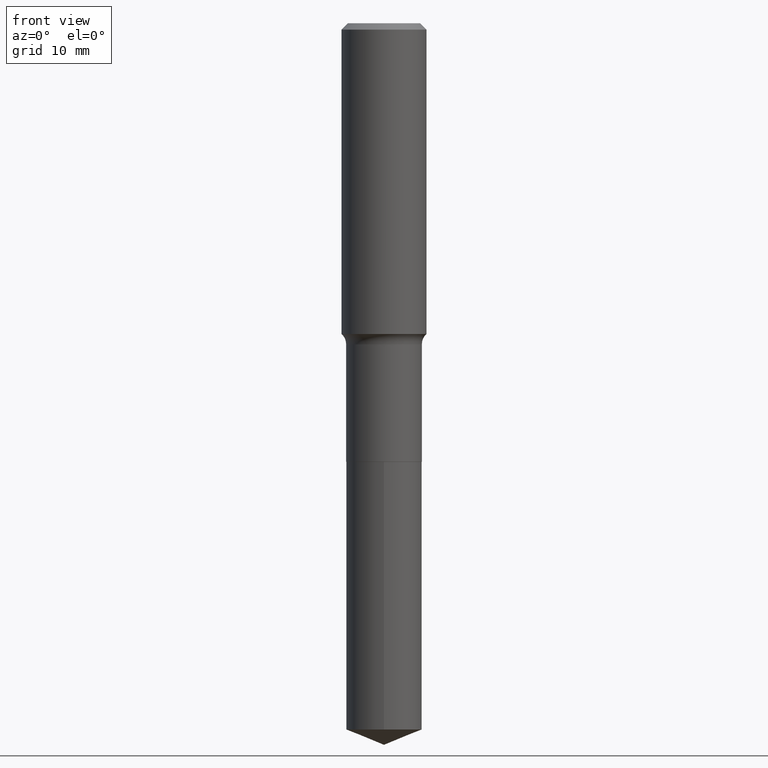
[diagram: clean part render]
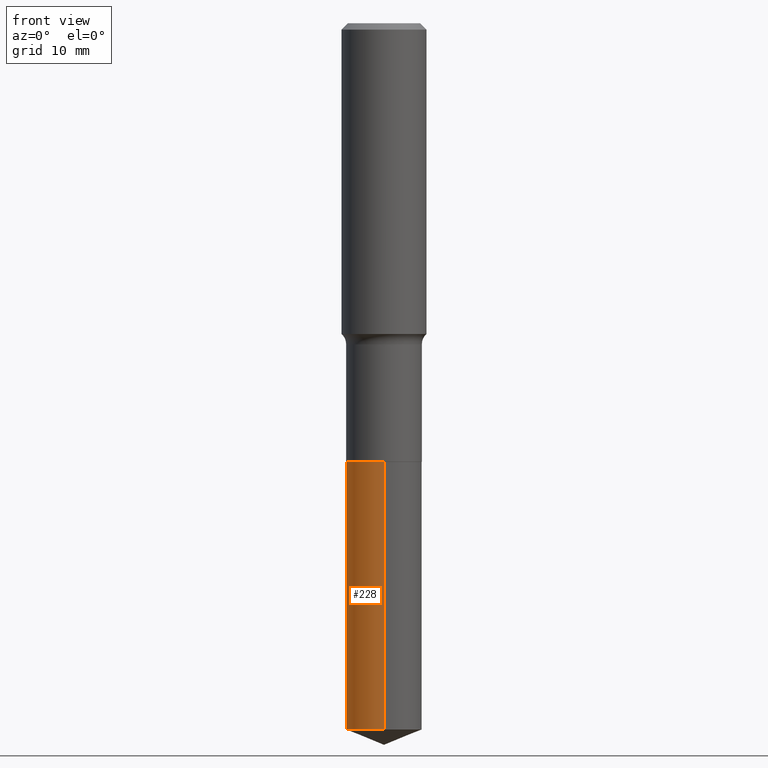
[diagram: same view with one face highlighted and labeled with its STEP entity id]
A machine part, front view. The second image highlights one B-rep face of the part: STEP entity #228.
In plain terms, the highlighted cylindrical surface (partial cylindrical patch) has radius 5.3505 mm, axis along (-0, 0, 1).
Its self-contained STEP definition (entity closure, byte-faithful):
#10 = EDGE_CURVE ( 'NONE', #451, #432, #41, .T. ) ;
#11 = ORIENTED_EDGE ( 'NONE', *, *, #426, .F. ) ;
#18 = DIRECTION ( 'NONE',  ( -2.445425754346182208E-29, 3.491542991526886614E-15, 1.000000000000000000 ) ) ;
#35 = EDGE_LOOP ( 'NONE', ( #11, #221, #264, #416 ) ) ;
#41 = LINE ( 'NONE', #186, #280 ) ;
#47 = VERTEX_POINT ( 'NONE', #235 ) ;
#87 = DIRECTION ( 'NONE',  ( -2.445425754346182208E-29, 3.491542991526886614E-15, 1.000000000000000000 ) ) ;
#111 = CARTESIAN_POINT ( 'NONE',  ( -1.470961088054552202E-15, -0.2106500000000085526, -2.440899999999999181 ) ) ;
#125 = AXIS2_PLACEMENT_3D ( 'NONE', #276, #87, #359 ) ;
#152 = CARTESIAN_POINT ( 'NONE',  ( 1.496758272878746719E-15, 0.2106499999999862371, -3.930591875527825074 ) ) ;
#159 = EDGE_CURVE ( 'NONE', #47, #432, #196, .T. ) ;
#164 = DIRECTION ( 'NONE',  ( -6.982962677686265922E-15, -1.000000000000000000, 2.593731776562319814E-15 ) ) ;
#167 = CARTESIAN_POINT ( 'NONE',  ( 9.612075687473308586E-29, -1.372368002751595173E-14, -3.930591875527824186 ) ) ;
#174 = EDGE_CURVE ( 'NONE', #341, #451, #246, .T. ) ;
#186 = CARTESIAN_POINT ( 'NONE',  ( -1.470961088054552202E-15, -0.2106500000000085526, -2.440899999999999181 ) ) ;
#192 = LINE ( 'NONE', #269, #482 ) ;
#196 = CIRCLE ( 'NONE', #125, 0.2106500000000000039 ) ;
#211 = FACE_OUTER_BOUND ( 'NONE', #35, .T. ) ;
#216 = DIRECTION ( 'NONE',  ( -2.445425754346182208E-29, 3.491542991526886614E-15, 1.000000000000000000 ) ) ;
#221 = ORIENTED_EDGE ( 'NONE', *, *, #174, .T. ) ;
#228 = ADVANCED_FACE ( 'NONE', ( #211 ), #290, .T. ) ;
#235 = CARTESIAN_POINT ( 'NONE',  ( 1.496758272878746916E-15, 0.2106499999999914274, -2.440900000000000514 ) ) ;
#246 = CIRCLE ( 'NONE', #294, 0.2106500000000000039 ) ;
#256 = CARTESIAN_POINT ( 'NONE',  ( 5.969144809017299038E-29, -8.522356799982232966E-15, -2.440900000000000070 ) ) ;
#262 = AXIS2_PLACEMENT_3D ( 'NONE', #256, #216, #365 ) ;
#264 = ORIENTED_EDGE ( 'NONE', *, *, #10, .T. ) ;
#269 = CARTESIAN_POINT ( 'NONE',  ( 1.496758272878710628E-15, 0.2106499999999914829, -2.440900000000000514 ) ) ;
#276 = CARTESIAN_POINT ( 'NONE',  ( 5.969144809017299038E-29, -8.522356799982232966E-15, -2.440900000000000070 ) ) ;
#280 = VECTOR ( 'NONE', #346, 39.37007874015748143 ) ;
#290 = CYLINDRICAL_SURFACE ( 'NONE', #262, 0.2106500000000000039 ) ;
#294 = AXIS2_PLACEMENT_3D ( 'NONE', #167, #18, #164 ) ;
#341 = VERTEX_POINT ( 'NONE', #152 ) ;
#346 = DIRECTION ( 'NONE',  ( -2.445425754346182208E-29, 3.491542991526886220E-15, 1.000000000000000000 ) ) ;
#353 = DIRECTION ( 'NONE',  ( -2.445425754346182208E-29, 3.491542991526886220E-15, 1.000000000000000000 ) ) ;
#359 = DIRECTION ( 'NONE',  ( -6.982962677686265922E-15, -1.000000000000000000, 3.890597664843479129E-15 ) ) ;
#365 = DIRECTION ( 'NONE',  ( -6.982962677686265922E-15, -1.000000000000000000, 3.890597664843479129E-15 ) ) ;
#416 = ORIENTED_EDGE ( 'NONE', *, *, #159, .F. ) ;
#426 = EDGE_CURVE ( 'NONE', #341, #47, #192, .T. ) ;
#432 = VERTEX_POINT ( 'NONE', #111 ) ;
#450 = CARTESIAN_POINT ( 'NONE',  ( -1.470961088054515717E-15, -0.2106500000000137152, -3.930591875527823742 ) ) ;
#451 = VERTEX_POINT ( 'NONE', #450 ) ;
#482 = VECTOR ( 'NONE', #353, 39.37007874015748143 ) ;